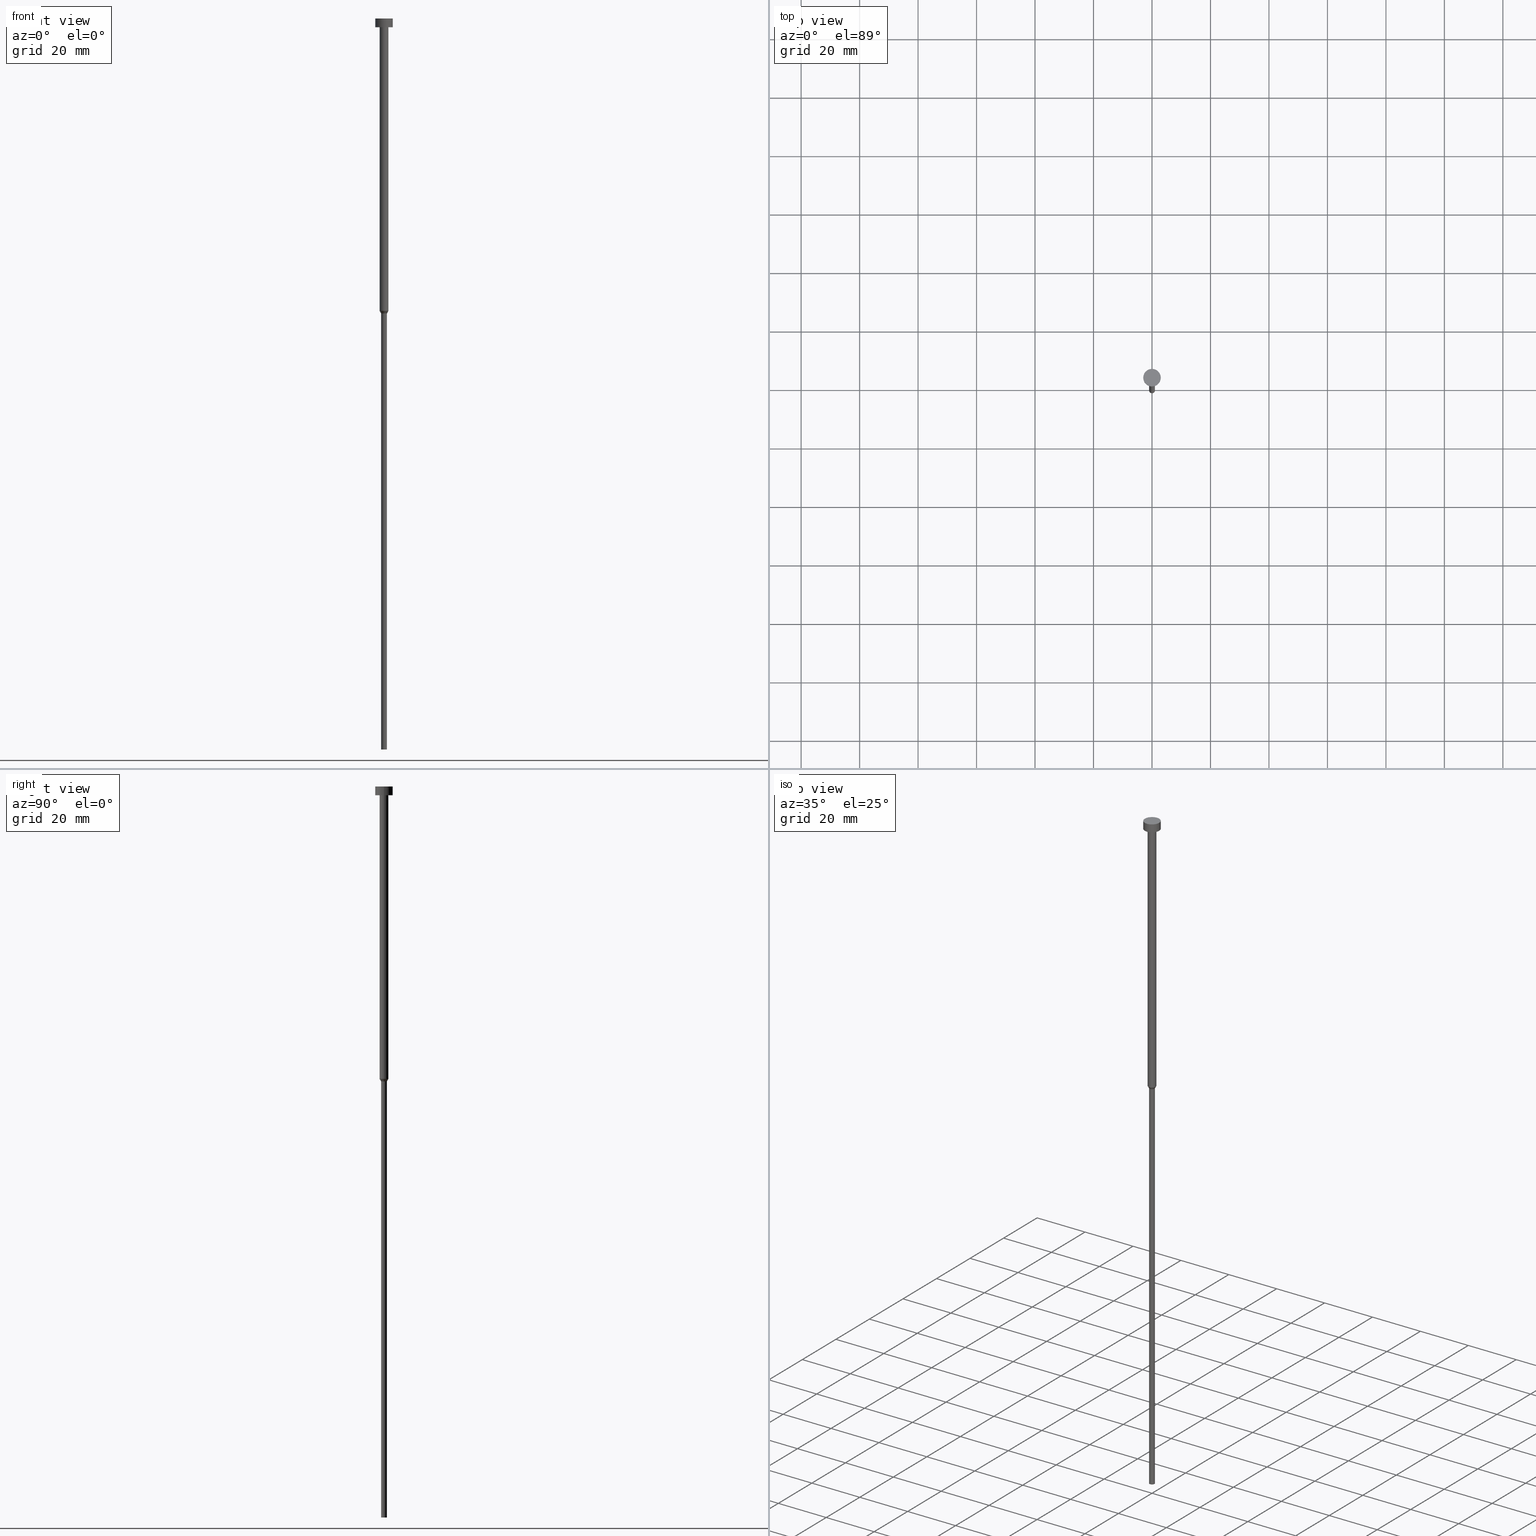
[diagram: canonical four-view strip — front | top / right | iso, engineering-drawing reading convention]
A machine part, canonical four-view strip (front | top / right | iso — engineering-drawing reading convention). The complete STEP part file that produces these views, byte-faithful:
ISO-10303-21;
HEADER;
FILE_DESCRIPTION (( 'STEP AP203' ),
    '1' );
FILE_NAME ('ff66.STEP',
    '2023-02-13T09:01:12',
    ( '' ),
    ( '' ),
    'SwSTEP 2.0',
    'SolidWorks 2019',
    '' );
FILE_SCHEMA (( 'CONFIG_CONTROL_DESIGN' ));
ENDSEC;

DATA;
#1 = EDGE_LOOP ( 'NONE', ( #247, #104, #208, #133 ) ) ;
#2 = EDGE_CURVE ( 'NONE', #71, #329, #213, .T. ) ;
#3 = DIRECTION ( 'NONE',  ( 1.000000000000000000, 0.000000000000000000, 0.000000000000000000 ) ) ;
#4 = DATE_AND_TIME ( #282, #180 ) ;
#5 = DIRECTION ( 'NONE',  ( 1.000000000000000000, 0.000000000000000000, 0.000000000000000000 ) ) ;
#6 = APPROVAL_PERSON_ORGANIZATION ( #116, #93, #175 ) ;
#7 = CARTESIAN_POINT ( 'NONE',  ( -1.000000000000000000, 1.224646799147353207E-16, 0.000000000000000000 ) ) ;
#8 = DATE_AND_TIME ( #168, #206 ) ;
#9 = ADVANCED_FACE ( 'NONE', ( #70 ), #301, .T. ) ;
#10 = CARTESIAN_POINT ( 'NONE',  ( -1.500000000000000000, 1.836970198721029934E-16, -100.0000000000000000 ) ) ;
#11 = PERSON_AND_ORGANIZATION ( #188, #77 ) ;
#12 = CARTESIAN_POINT ( 'NONE',  ( 0.000000000000000000, 0.000000000000000000, -3.000000000000000888 ) ) ;
#13 = APPROVAL_ROLE ( '' ) ;
#14 = CARTESIAN_POINT ( 'NONE',  ( -1.000000000000000000, 1.224646799147353207E-16, -100.8660254037844481 ) ) ;
#15 = ADVANCED_FACE ( 'NONE', ( #345 ), #25, .T. ) ;
#16 = AXIS2_PLACEMENT_3D ( 'NONE', #230, #76, #331 ) ;
#17 = AXIS2_PLACEMENT_3D ( 'NONE', #248, #272, #49 ) ;
#18 = EDGE_LOOP ( 'NONE', ( #262, #112 ) ) ;
#19 = CARTESIAN_POINT ( 'NONE',  ( -1.000000000000000000, 1.224646799147353207E-16, -250.0000000000000000 ) ) ;
#20 = CIRCLE ( 'NONE', #141, 1.000000000000000000 ) ;
#21 = CC_DESIGN_DATE_AND_TIME_ASSIGNMENT ( #196, #302, ( #341 ) ) ;
#22 = VERTEX_POINT ( 'NONE', #312 ) ;
#23 = CYLINDRICAL_SURFACE ( 'NONE', #118, 3.000000000000000000 ) ;
#24 = LOCAL_TIME ( 10, 1, 12.00000000000000000, #91 ) ;
#25 = CYLINDRICAL_SURFACE ( 'NONE', #47, 1.500000000000000000 ) ;
#26 = ORIENTED_EDGE ( 'NONE', *, *, #232, .F. ) ;
#27 = ORIENTED_EDGE ( 'NONE', *, *, #151, .F. ) ;
#28 = CC_DESIGN_PERSON_AND_ORGANIZATION_ASSIGNMENT ( #11, #59, ( #101 ) ) ;
#29 = CARTESIAN_POINT ( 'NONE',  ( 0.000000000000000000, 0.000000000000000000, -100.0000000000000000 ) ) ;
#30 = CARTESIAN_POINT ( 'NONE',  ( 0.000000000000000000, 0.000000000000000000, -250.0000000000000000 ) ) ;
#31 = COORDINATED_UNIVERSAL_TIME_OFFSET ( 1, 0, .AHEAD. ) ;
#32 = CARTESIAN_POINT ( 'NONE',  ( 0.000000000000000000, 0.000000000000000000, -1.836970198721029934E-16 ) ) ;
#33 = CC_DESIGN_PERSON_AND_ORGANIZATION_ASSIGNMENT ( #122, #87, ( #313 ) ) ;
#34 = APPROVAL_ROLE ( '' ) ;
#35 = CIRCLE ( 'NONE', #326, 1.000000000000000000 ) ;
#36 = VECTOR ( 'NONE', #113, 1000.000000000000000 ) ;
#37 = DIRECTION ( 'NONE',  ( -0.000000000000000000, -0.000000000000000000, 1.000000000000000000 ) ) ;
#38 = DIRECTION ( 'NONE',  ( -0.000000000000000000, -0.000000000000000000, 1.000000000000000000 ) ) ;
#39 = DIRECTION ( 'NONE',  ( -0.000000000000000000, -0.000000000000000000, 1.000000000000000000 ) ) ;
#40 = CIRCLE ( 'NONE', #235, 1.500000000000000000 ) ;
#41 = EDGE_LOOP ( 'NONE', ( #297, #241, #68, #48 ) ) ;
#42 = CC_DESIGN_PERSON_AND_ORGANIZATION_ASSIGNMENT ( #226, #89, ( #310 ) ) ;
#43 = VECTOR ( 'NONE', #244, 1000.000000000000114 ) ;
#44 = CARTESIAN_POINT ( 'NONE',  ( 0.000000000000000000, 0.000000000000000000, -100.0000000000000000 ) ) ;
#45 = EDGE_LOOP ( 'NONE', ( #135, #314, #129, #161 ) ) ;
#46 = CYLINDRICAL_SURFACE ( 'NONE', #17, 1.000000000000000000 ) ;
#47 = AXIS2_PLACEMENT_3D ( 'NONE', #148, #249, #3 ) ;
#48 = ORIENTED_EDGE ( 'NONE', *, *, #217, .F. ) ;
#49 = DIRECTION ( 'NONE',  ( 1.000000000000000000, 0.000000000000000000, 0.000000000000000000 ) ) ;
#50 = VERTEX_POINT ( 'NONE', #198 ) ;
#51 = EDGE_CURVE ( 'NONE', #291, #209, #340, .T. ) ;
#52 = ORIENTED_EDGE ( 'NONE', *, *, #51, .F. ) ;
#53 = CARTESIAN_POINT ( 'NONE',  ( 3.000000000000000000, 0.000000000000000000, 0.000000000000000000 ) ) ;
#54 = ORIENTED_EDGE ( 'NONE', *, *, #290, .T. ) ;
#55 = PLANE ( 'NONE',  #177 ) ;
#56 = CALENDAR_DATE ( 2023, 13, 2 ) ;
#57 = ADVANCED_FACE ( 'NONE', ( #142 ), #119, .T. ) ;
#58 = DIRECTION ( 'NONE',  ( 0.000000000000000000, 0.000000000000000000, -1.000000000000000000 ) ) ;
#59 = PERSON_AND_ORGANIZATION_ROLE ( 'design_supplier' ) ;
#60 = DESIGN_CONTEXT ( 'detailed design', #260, 'design' ) ;
#61 = DIRECTION ( 'NONE',  ( -0.000000000000000000, -0.000000000000000000, 1.000000000000000000 ) ) ;
#62 = CIRCLE ( 'NONE', #237, 1.000000000000000000 ) ;
#63 = DIRECTION ( 'NONE',  ( -0.000000000000000000, -0.000000000000000000, 1.000000000000000000 ) ) ;
#64 = APPROVAL_DATE_TIME ( #275, #69 ) ;
#65 = CARTESIAN_POINT ( 'NONE',  ( 0.000000000000000000, 0.000000000000000000, -100.8660254037844481 ) ) ;
#66 = VERTEX_POINT ( 'NONE', #10 ) ;
#67 = LOCAL_TIME ( 10, 1, 12.00000000000000000, #94 ) ;
#68 = ORIENTED_EDGE ( 'NONE', *, *, #285, .T. ) ;
#69 = APPROVAL ( #223, 'NEUR�EN�' ) ;
#70 = FACE_OUTER_BOUND ( 'NONE', #132, .T. ) ;
#71 = VERTEX_POINT ( 'NONE', #227 ) ;
#72 = DIRECTION ( 'NONE',  ( 1.000000000000000000, 0.000000000000000000, 0.000000000000000000 ) ) ;
#73 = AXIS2_PLACEMENT_3D ( 'NONE', #332, #38, #195 ) ;
#74 = ORIENTED_EDGE ( 'NONE', *, *, #151, .T. ) ;
#75 = EDGE_CURVE ( 'NONE', #264, #205, #194, .T. ) ;
#76 = DIRECTION ( 'NONE',  ( -0.000000000000000000, -0.000000000000000000, 1.000000000000000000 ) ) ;
#77 = ORGANIZATION ( 'NEUR�EN�', 'NEUR�EN�', '' ) ;
#78 = PRODUCT_DEFINITION_SHAPE ( 'NONE', 'NONE',  #310 ) ;
#79 = ORIENTED_EDGE ( 'NONE', *, *, #324, .T. ) ;
#80 = CARTESIAN_POINT ( 'NONE',  ( 0.000000000000000000, 0.000000000000000000, 0.000000000000000000 ) ) ;
#81 = FACE_OUTER_BOUND ( 'NONE', #45, .T. ) ;
#82 = CIRCLE ( 'NONE', #231, 1.500000000000000000 ) ;
#83 = DIRECTION ( 'NONE',  ( 1.000000000000000000, 0.000000000000000000, 0.000000000000000000 ) ) ;
#84 = EDGE_CURVE ( 'NONE', #66, #128, #123, .T. ) ;
#85 = ADVANCED_FACE ( 'NONE', ( #303 ), #225, .T. ) ;
#86 = CARTESIAN_POINT ( 'NONE',  ( -3.000000000000000000, 3.673940397442059868E-16, -3.673940397442059868E-16 ) ) ;
#87 = PERSON_AND_ORGANIZATION_ROLE ( 'design_owner' ) ;
#88 = FACE_OUTER_BOUND ( 'NONE', #215, .T. ) ;
#89 = PERSON_AND_ORGANIZATION_ROLE ( 'creator' ) ;
#90 = DIRECTION ( 'NONE',  ( -1.000000000000000000, 0.000000000000000000, -0.000000000000000000 ) ) ;
#91 = COORDINATED_UNIVERSAL_TIME_OFFSET ( 1, 0, .AHEAD. ) ;
#92 = CARTESIAN_POINT ( 'NONE',  ( -1.500000000000000000, 1.836970198721029934E-16, 0.000000000000000000 ) ) ;
#93 = APPROVAL ( #166, 'NEUR�EN�' ) ;
#94 = COORDINATED_UNIVERSAL_TIME_OFFSET ( 1, 0, .AHEAD. ) ;
#95 = DIRECTION ( 'NONE',  ( 1.000000000000000000, 0.000000000000000000, 0.000000000000000000 ) ) ;
#96 = ORIENTED_EDGE ( 'NONE', *, *, #224, .F. ) ;
#97 = EDGE_LOOP ( 'NONE', ( #325, #163 ) ) ;
#98 = CLOSED_SHELL ( 'NONE', ( #336, #57, #245, #115, #160, #289, #183, #15, #193, #9, #85 ) ) ;
#99 = CC_DESIGN_PERSON_AND_ORGANIZATION_ASSIGNMENT ( #253, #228, ( #341 ) ) ;
#100 = EDGE_CURVE ( 'NONE', #329, #102, #274, .T. ) ;
#101 = PRODUCT_DEFINITION_FORMATION_WITH_SPECIFIED_SOURCE ( 'LIBOVOLN�', '', #313, .NOT_KNOWN. ) ;
#102 = VERTEX_POINT ( 'NONE', #86 ) ;
#103 = CARTESIAN_POINT ( 'NONE',  ( 1.000000000000000000, 0.000000000000000000, 0.000000000000000000 ) ) ;
#104 = ORIENTED_EDGE ( 'NONE', *, *, #217, .T. ) ;
#105 = CARTESIAN_POINT ( 'NONE',  ( 0.000000000000000000, 0.000000000000000000, 0.000000000000000000 ) ) ;
#106 = VERTEX_POINT ( 'NONE', #220 ) ;
#107 = CARTESIAN_POINT ( 'NONE',  ( 0.000000000000000000, 0.000000000000000000, -3.673940397442059868E-16 ) ) ;
#108 = AXIS2_PLACEMENT_3D ( 'NONE', #184, #293, #158 ) ;
#109 = ORIENTED_EDGE ( 'NONE', *, *, #100, .F. ) ;
#110 = DIRECTION ( 'NONE',  ( -0.000000000000000000, -0.000000000000000000, 1.000000000000000000 ) ) ;
#111 = CC_DESIGN_APPROVAL ( #69, ( #310 ) ) ;
#112 = ORIENTED_EDGE ( 'NONE', *, *, #349, .F. ) ;
#113 = DIRECTION ( 'NONE',  ( -0.000000000000000000, -0.000000000000000000, 1.000000000000000000 ) ) ;
#114 = DIRECTION ( 'NONE',  ( -0.000000000000000000, -0.000000000000000000, 1.000000000000000000 ) ) ;
#115 = ADVANCED_FACE ( 'NONE', ( #88 ), #169, .T. ) ;
#116 = PERSON_AND_ORGANIZATION ( #188, #77 ) ;
#117 = FACE_OUTER_BOUND ( 'NONE', #1, .T. ) ;
#118 = AXIS2_PLACEMENT_3D ( 'NONE', #182, #110, #131 ) ;
#119 = CYLINDRICAL_SURFACE ( 'NONE', #199, 1.500000000000000000 ) ;
#120 = SHAPE_DEFINITION_REPRESENTATION ( #78, #239 ) ;
#121 = DIRECTION ( 'NONE',  ( 1.000000000000000000, 0.000000000000000000, 0.000000000000000000 ) ) ;
#122 = PERSON_AND_ORGANIZATION ( #188, #77 ) ;
#123 = LINE ( 'NONE', #92, #287 ) ;
#124 = COORDINATED_UNIVERSAL_TIME_OFFSET ( 1, 0, .AHEAD. ) ;
#125 =( GEOMETRIC_REPRESENTATION_CONTEXT ( 3 ) GLOBAL_UNCERTAINTY_ASSIGNED_CONTEXT ( ( #335 ) ) GLOBAL_UNIT_ASSIGNED_CONTEXT ( ( #298, #190, #212 ) ) REPRESENTATION_CONTEXT ( 'NONE', 'WORKASPACE' ) );
#126 = DIRECTION ( 'NONE',  ( 1.000000000000000000, 0.000000000000000000, 0.000000000000000000 ) ) ;
#127 = AXIS2_PLACEMENT_3D ( 'NONE', #150, #176, #95 ) ;
#128 = VERTEX_POINT ( 'NONE', #305 ) ;
#129 = ORIENTED_EDGE ( 'NONE', *, *, #138, .F. ) ;
#130 = CIRCLE ( 'NONE', #144, 3.000000000000000000 ) ;
#131 = DIRECTION ( 'NONE',  ( 1.000000000000000000, 0.000000000000000000, 0.000000000000000000 ) ) ;
#132 = EDGE_LOOP ( 'NONE', ( #109, #186, #54, #243 ) ) ;
#133 = ORIENTED_EDGE ( 'NONE', *, *, #261, .F. ) ;
#134 = DIRECTION ( 'NONE',  ( -0.000000000000000000, -0.000000000000000000, 1.000000000000000000 ) ) ;
#135 = ORIENTED_EDGE ( 'NONE', *, *, #2, .T. ) ;
#136 = FACE_OUTER_BOUND ( 'NONE', #316, .T. ) ;
#137 = VECTOR ( 'NONE', #159, 1000.000000000000000 ) ;
#138 = EDGE_CURVE ( 'NONE', #50, #102, #354, .T. ) ;
#139 = DIRECTION ( 'NONE',  ( -0.000000000000000000, -0.000000000000000000, 1.000000000000000000 ) ) ;
#140 = CARTESIAN_POINT ( 'NONE',  ( 0.000000000000000000, 0.000000000000000000, -250.0000000000000000 ) ) ;
#141 = AXIS2_PLACEMENT_3D ( 'NONE', #140, #250, #307 ) ;
#142 = FACE_OUTER_BOUND ( 'NONE', #238, .T. ) ;
#143 = PERSON_AND_ORGANIZATION ( #188, #77 ) ;
#144 = AXIS2_PLACEMENT_3D ( 'NONE', #107, #263, #348 ) ;
#145 = DIRECTION ( 'NONE',  ( -0.000000000000000000, -0.000000000000000000, 1.000000000000000000 ) ) ;
#146 = CALENDAR_DATE ( 2023, 13, 2 ) ;
#147 = MANIFOLD_SOLID_BREP ( 'Rotovat1', #98 ) ;
#148 = CARTESIAN_POINT ( 'NONE',  ( 0.000000000000000000, 0.000000000000000000, 0.000000000000000000 ) ) ;
#149 = PERSON_AND_ORGANIZATION_ROLE ( 'creator' ) ;
#150 = CARTESIAN_POINT ( 'NONE',  ( 0.000000000000000000, 0.000000000000000000, -100.8660254037844481 ) ) ;
#151 = EDGE_CURVE ( 'NONE', #128, #209, #40, .T. ) ;
#152 = AXIS2_PLACEMENT_3D ( 'NONE', #80, #234, #267 ) ;
#153 = PRODUCT_RELATED_PRODUCT_CATEGORY ( 'detail', '', ( #313 ) ) ;
#154 = CARTESIAN_POINT ( 'NONE',  ( 1.500000000000000000, 0.000000000000000000, -100.0000000000000000 ) ) ;
#155 = ORIENTED_EDGE ( 'NONE', *, *, #157, .T. ) ;
#156 = AXIS2_PLACEMENT_3D ( 'NONE', #32, #256, #337 ) ;
#157 = EDGE_CURVE ( 'NONE', #291, #66, #82, .T. ) ;
#158 = DIRECTION ( 'NONE',  ( 1.000000000000000000, 0.000000000000000000, 0.000000000000000000 ) ) ;
#159 = DIRECTION ( 'NONE',  ( -0.000000000000000000, -0.000000000000000000, 1.000000000000000000 ) ) ;
#160 = ADVANCED_FACE ( 'NONE', ( #309 ), #55, .T. ) ;
#161 = ORIENTED_EDGE ( 'NONE', *, *, #290, .F. ) ;
#162 = APPLICATION_PROTOCOL_DEFINITION ( 'international standard', 'config_control_design', 1994, #240 ) ;
#163 = ORIENTED_EDGE ( 'NONE', *, *, #350, .T. ) ;
#164 = CARTESIAN_POINT ( 'NONE',  ( 1.500000000000000000, 0.000000000000000000, -100.0000000000000000 ) ) ;
#165 = CARTESIAN_POINT ( 'NONE',  ( 1.500000000000000000, 0.000000000000000000, 0.000000000000000000 ) ) ;
#166 = APPROVAL_STATUS ( 'not_yet_approved' ) ;
#167 = CARTESIAN_POINT ( 'NONE',  ( 0.000000000000000000, 0.000000000000000000, -3.673940397442059868E-16 ) ) ;
#168 = CALENDAR_DATE ( 2023, 13, 2 ) ;
#169 = CYLINDRICAL_SURFACE ( 'NONE', #73, 1.000000000000000000 ) ;
#170 = PERSON_AND_ORGANIZATION ( #188, #77 ) ;
#171 = CIRCLE ( 'NONE', #16, 3.000000000000000000 ) ;
#172 = DIRECTION ( 'NONE',  ( 1.000000000000000000, 0.000000000000000000, 0.000000000000000000 ) ) ;
#173 = CONICAL_SURFACE ( 'NONE', #214, 1.500000000000000000, 0.5235987755982968173 ) ;
#174 = CARTESIAN_POINT ( 'NONE',  ( 0.000000000000000000, 0.000000000000000000, 0.000000000000000000 ) ) ;
#175 = APPROVAL_ROLE ( '' ) ;
#176 = DIRECTION ( 'NONE',  ( -0.000000000000000000, -0.000000000000000000, 1.000000000000000000 ) ) ;
#177 = AXIS2_PLACEMENT_3D ( 'NONE', #30, #58, #334 ) ;
#178 = LOCAL_TIME ( 10, 1, 12.00000000000000000, #221 ) ;
#179 = EDGE_CURVE ( 'NONE', #22, #264, #20, .T. ) ;
#180 = LOCAL_TIME ( 10, 1, 12.00000000000000000, #31 ) ;
#181 = ORIENTED_EDGE ( 'NONE', *, *, #285, .F. ) ;
#182 = CARTESIAN_POINT ( 'NONE',  ( 0.000000000000000000, 0.000000000000000000, 0.000000000000000000 ) ) ;
#183 = ADVANCED_FACE ( 'NONE', ( #117 ), #279, .T. ) ;
#184 = CARTESIAN_POINT ( 'NONE',  ( 0.000000000000000000, 0.000000000000000000, -3.000000000000000888 ) ) ;
#185 = AXIS2_PLACEMENT_3D ( 'NONE', #254, #338, #90 ) ;
#186 = ORIENTED_EDGE ( 'NONE', *, *, #224, .T. ) ;
#187 = DIRECTION ( 'NONE',  ( 1.000000000000000000, 0.000000000000000000, 0.000000000000000000 ) ) ;
#188 = PERSON ( 'NEUR�EN�', 'NEUR�EN�', 'NEUR�EN�', ('NEUR�EN�'), ('NEUR�EN�'), ('NEUR�EN�') ) ;
#189 = EDGE_LOOP ( 'NONE', ( #211, #96 ) ) ;
#190 =( NAMED_UNIT ( * ) PLANE_ANGLE_UNIT ( ) SI_UNIT ( $, .RADIAN. ) );
#191 = ORIENTED_EDGE ( 'NONE', *, *, #324, .F. ) ;
#192 = DIRECTION ( 'NONE',  ( -0.000000000000000000, -0.000000000000000000, 1.000000000000000000 ) ) ;
#193 = ADVANCED_FACE ( 'NONE', ( #252, #280 ), #201, .T. ) ;
#194 = LINE ( 'NONE', #7, #333 ) ;
#195 = DIRECTION ( 'NONE',  ( 1.000000000000000000, 0.000000000000000000, 0.000000000000000000 ) ) ;
#196 = DATE_AND_TIME ( #304, #24 ) ;
#197 = EDGE_CURVE ( 'NONE', #106, #205, #265, .T. ) ;
#198 = CARTESIAN_POINT ( 'NONE',  ( 3.000000000000000000, 0.000000000000000000, -3.673940397442059868E-16 ) ) ;
#199 = AXIS2_PLACEMENT_3D ( 'NONE', #174, #139, #83 ) ;
#200 = DIRECTION ( 'NONE',  ( -0.000000000000000000, -0.000000000000000000, 1.000000000000000000 ) ) ;
#201 = PLANE ( 'NONE',  #185 ) ;
#202 = DIRECTION ( 'NONE',  ( -0.4999999999999981681, 6.123233995736742617E-17, 0.8660254037844395958 ) ) ;
#203 = ORIENTED_EDGE ( 'NONE', *, *, #261, .T. ) ;
#204 = VECTOR ( 'NONE', #202, 1000.000000000000114 ) ;
#205 = VERTEX_POINT ( 'NONE', #14 ) ;
#206 = LOCAL_TIME ( 10, 1, 12.00000000000000000, #124 ) ;
#207 = CC_DESIGN_SECURITY_CLASSIFICATION ( #341, ( #101 ) ) ;
#208 = ORIENTED_EDGE ( 'NONE', *, *, #232, .T. ) ;
#209 = VERTEX_POINT ( 'NONE', #286 ) ;
#210 = CARTESIAN_POINT ( 'NONE',  ( 0.000000000000000000, 0.000000000000000000, -100.0000000000000000 ) ) ;
#211 = ORIENTED_EDGE ( 'NONE', *, *, #2, .F. ) ;
#212 =( NAMED_UNIT ( * ) SI_UNIT ( $, .STERADIAN. ) SOLID_ANGLE_UNIT ( ) );
#213 = CIRCLE ( 'NONE', #108, 3.000000000000000000 ) ;
#214 = AXIS2_PLACEMENT_3D ( 'NONE', #44, #321, #236 ) ;
#215 = EDGE_LOOP ( 'NONE', ( #218, #353, #351, #181 ) ) ;
#216 = EDGE_CURVE ( 'NONE', #205, #66, #342, .T. ) ;
#217 = EDGE_CURVE ( 'NONE', #205, #106, #35, .T. ) ;
#218 = ORIENTED_EDGE ( 'NONE', *, *, #179, .T. ) ;
#219 = LINE ( 'NONE', #103, #137 ) ;
#220 = CARTESIAN_POINT ( 'NONE',  ( 1.000000000000000000, 0.000000000000000000, -100.8660254037844481 ) ) ;
#221 = COORDINATED_UNIVERSAL_TIME_OFFSET ( 1, 0, .AHEAD. ) ;
#222 = DIRECTION ( 'NONE',  ( -0.000000000000000000, -0.000000000000000000, 1.000000000000000000 ) ) ;
#223 = APPROVAL_STATUS ( 'not_yet_approved' ) ;
#224 = EDGE_CURVE ( 'NONE', #329, #71, #171, .T. ) ;
#225 = PLANE ( 'NONE',  #156 ) ;
#226 = PERSON_AND_ORGANIZATION ( #188, #77 ) ;
#227 = CARTESIAN_POINT ( 'NONE',  ( 3.000000000000000000, 0.000000000000000000, -3.000000000000000888 ) ) ;
#228 = PERSON_AND_ORGANIZATION_ROLE ( 'classification_officer' ) ;
#229 = DIRECTION ( 'NONE',  ( -0.000000000000000000, -0.000000000000000000, 1.000000000000000000 ) ) ;
#230 = CARTESIAN_POINT ( 'NONE',  ( 0.000000000000000000, 0.000000000000000000, -3.000000000000000888 ) ) ;
#231 = AXIS2_PLACEMENT_3D ( 'NONE', #29, #145, #5 ) ;
#232 = EDGE_CURVE ( 'NONE', #106, #291, #266, .T. ) ;
#233 = CC_DESIGN_PERSON_AND_ORGANIZATION_ASSIGNMENT ( #143, #149, ( #101 ) ) ;
#234 = DIRECTION ( 'NONE',  ( -0.000000000000000000, -0.000000000000000000, 1.000000000000000000 ) ) ;
#235 = AXIS2_PLACEMENT_3D ( 'NONE', #12, #63, #121 ) ;
#236 = DIRECTION ( 'NONE',  ( 1.000000000000000000, 0.000000000000000000, 0.000000000000000000 ) ) ;
#237 = AXIS2_PLACEMENT_3D ( 'NONE', #328, #192, #187 ) ;
#238 = EDGE_LOOP ( 'NONE', ( #155, #318, #191, #52 ) ) ;
#239 = ADVANCED_BREP_SHAPE_REPRESENTATION ( 'ff66', ( #147, #246 ), #125 ) ;
#240 = APPLICATION_CONTEXT ( 'configuration controlled 3d designs of mechanical parts and assemblies' ) ;
#241 = ORIENTED_EDGE ( 'NONE', *, *, #349, .T. ) ;
#242 = DIRECTION ( 'NONE',  ( 1.000000000000000000, 0.000000000000000000, 0.000000000000000000 ) ) ;
#243 = ORIENTED_EDGE ( 'NONE', *, *, #350, .F. ) ;
#244 = DIRECTION ( 'NONE',  ( 0.4999999999999981681, 0.000000000000000000, 0.8660254037844395958 ) ) ;
#245 = ADVANCED_FACE ( 'NONE', ( #136 ), #173, .T. ) ;
#246 = AXIS2_PLACEMENT_3D ( 'NONE', #105, #323, #72 ) ;
#247 = ORIENTED_EDGE ( 'NONE', *, *, #216, .F. ) ;
#248 = CARTESIAN_POINT ( 'NONE',  ( 0.000000000000000000, 0.000000000000000000, 0.000000000000000000 ) ) ;
#249 = DIRECTION ( 'NONE',  ( -0.000000000000000000, -0.000000000000000000, 1.000000000000000000 ) ) ;
#250 = DIRECTION ( 'NONE',  ( -0.000000000000000000, -0.000000000000000000, 1.000000000000000000 ) ) ;
#251 = DATE_TIME_ROLE ( 'creation_date' ) ;
#252 = FACE_BOUND ( 'NONE', #347, .T. ) ;
#253 = PERSON_AND_ORGANIZATION ( #188, #77 ) ;
#254 = CARTESIAN_POINT ( 'NONE',  ( 0.000000000000000000, -3.000000000000000000, -3.000000000000000888 ) ) ;
#255 = DATE_AND_TIME ( #146, #178 ) ;
#256 = DIRECTION ( 'NONE',  ( 0.000000000000000000, -0.000000000000000000, 1.000000000000000000 ) ) ;
#257 = APPROVAL_DATE_TIME ( #8, #296 ) ;
#258 = CARTESIAN_POINT ( 'NONE',  ( -1.500000000000000000, 1.836970198721029934E-16, -100.0000000000000000 ) ) ;
#259 = CIRCLE ( 'NONE', #288, 1.500000000000000000 ) ;
#260 = APPLICATION_CONTEXT ( 'configuration controlled 3d designs of mechanical parts and assemblies' ) ;
#261 = EDGE_CURVE ( 'NONE', #66, #291, #344, .T. ) ;
#262 = ORIENTED_EDGE ( 'NONE', *, *, #179, .F. ) ;
#263 = DIRECTION ( 'NONE',  ( -0.000000000000000000, -0.000000000000000000, 1.000000000000000000 ) ) ;
#264 = VERTEX_POINT ( 'NONE', #19 ) ;
#265 = CIRCLE ( 'NONE', #127, 1.000000000000000000 ) ;
#266 = LINE ( 'NONE', #164, #43 ) ;
#267 = DIRECTION ( 'NONE',  ( 1.000000000000000000, 0.000000000000000000, 0.000000000000000000 ) ) ;
#268 = CARTESIAN_POINT ( 'NONE',  ( 0.000000000000000000, 0.000000000000000000, -3.000000000000000888 ) ) ;
#269 = ORIENTED_EDGE ( 'NONE', *, *, #157, .F. ) ;
#270 = FACE_OUTER_BOUND ( 'NONE', #41, .T. ) ;
#271 = ORIENTED_EDGE ( 'NONE', *, *, #197, .T. ) ;
#272 = DIRECTION ( 'NONE',  ( -0.000000000000000000, -0.000000000000000000, 1.000000000000000000 ) ) ;
#273 = AXIS2_PLACEMENT_3D ( 'NONE', #210, #300, #346 ) ;
#274 = LINE ( 'NONE', #276, #294 ) ;
#275 = DATE_AND_TIME ( #56, #67 ) ;
#276 = CARTESIAN_POINT ( 'NONE',  ( -3.000000000000000000, 3.673940397442059868E-16, 0.000000000000000000 ) ) ;
#277 = CARTESIAN_POINT ( 'NONE',  ( 0.000000000000000000, 0.000000000000000000, -100.0000000000000000 ) ) ;
#278 = APPROVAL_STATUS ( 'not_yet_approved' ) ;
#279 = CONICAL_SURFACE ( 'NONE', #315, 1.500000000000000000, 0.5235987755982968173 ) ;
#280 = FACE_OUTER_BOUND ( 'NONE', #189, .T. ) ;
#281 = APPROVAL_PERSON_ORGANIZATION ( #170, #296, #34 ) ;
#282 = CALENDAR_DATE ( 2023, 13, 2 ) ;
#283 = DIRECTION ( 'NONE',  ( 1.000000000000000000, 0.000000000000000000, 0.000000000000000000 ) ) ;
#284 = SECURITY_CLASSIFICATION_LEVEL ( 'unclassified' ) ;
#285 = EDGE_CURVE ( 'NONE', #22, #106, #219, .T. ) ;
#286 = CARTESIAN_POINT ( 'NONE',  ( 1.500000000000000000, 0.000000000000000000, -3.000000000000000888 ) ) ;
#287 = VECTOR ( 'NONE', #222, 1000.000000000000000 ) ;
#288 = AXIS2_PLACEMENT_3D ( 'NONE', #268, #134, #242 ) ;
#289 = ADVANCED_FACE ( 'NONE', ( #270 ), #46, .T. ) ;
#290 = EDGE_CURVE ( 'NONE', #71, #50, #355, .T. ) ;
#291 = VERTEX_POINT ( 'NONE', #154 ) ;
#292 = MECHANICAL_CONTEXT ( 'NONE', #240, 'mechanical' ) ;
#293 = DIRECTION ( 'NONE',  ( -0.000000000000000000, -0.000000000000000000, 1.000000000000000000 ) ) ;
#294 = VECTOR ( 'NONE', #37, 1000.000000000000000 ) ;
#295 = CC_DESIGN_APPROVAL ( #296, ( #341 ) ) ;
#296 = APPROVAL ( #278, 'NEUR�EN�' ) ;
#297 = ORIENTED_EDGE ( 'NONE', *, *, #75, .F. ) ;
#298 =( LENGTH_UNIT ( ) NAMED_UNIT ( * ) SI_UNIT ( .MILLI., .METRE. ) );
#299 = ORIENTED_EDGE ( 'NONE', *, *, #216, .T. ) ;
#300 = DIRECTION ( 'NONE',  ( -0.000000000000000000, -0.000000000000000000, 1.000000000000000000 ) ) ;
#301 = CYLINDRICAL_SURFACE ( 'NONE', #152, 3.000000000000000000 ) ;
#302 = DATE_TIME_ROLE ( 'classification_date' ) ;
#303 = FACE_OUTER_BOUND ( 'NONE', #97, .T. ) ;
#304 = CALENDAR_DATE ( 2023, 13, 2 ) ;
#305 = CARTESIAN_POINT ( 'NONE',  ( -1.500000000000000000, 1.836970198721029934E-16, -3.000000000000000888 ) ) ;
#306 = APPROVAL_DATE_TIME ( #4, #93 ) ;
#307 = DIRECTION ( 'NONE',  ( 1.000000000000000000, 0.000000000000000000, 0.000000000000000000 ) ) ;
#308 = AXIS2_PLACEMENT_3D ( 'NONE', #167, #229, #283 ) ;
#309 = FACE_OUTER_BOUND ( 'NONE', #18, .T. ) ;
#310 = PRODUCT_DEFINITION ( 'NEZN�M�', '', #101, #60 ) ;
#311 = PERSON_AND_ORGANIZATION ( #188, #77 ) ;
#312 = CARTESIAN_POINT ( 'NONE',  ( 1.000000000000000000, 0.000000000000000000, -250.0000000000000000 ) ) ;
#313 = PRODUCT ( 'ff66', 'ff66', '', ( #292 ) ) ;
#314 = ORIENTED_EDGE ( 'NONE', *, *, #100, .T. ) ;
#315 = AXIS2_PLACEMENT_3D ( 'NONE', #277, #61, #172 ) ;
#316 = EDGE_LOOP ( 'NONE', ( #271, #299, #269, #26 ) ) ;
#317 = CC_DESIGN_APPROVAL ( #93, ( #101 ) ) ;
#318 = ORIENTED_EDGE ( 'NONE', *, *, #84, .T. ) ;
#319 = APPROVAL_PERSON_ORGANIZATION ( #311, #69, #13 ) ;
#320 = ORIENTED_EDGE ( 'NONE', *, *, #84, .F. ) ;
#321 = DIRECTION ( 'NONE',  ( -0.000000000000000000, -0.000000000000000000, 1.000000000000000000 ) ) ;
#322 = ORIENTED_EDGE ( 'NONE', *, *, #51, .T. ) ;
#323 = DIRECTION ( 'NONE',  ( 0.000000000000000000, 0.000000000000000000, 1.000000000000000000 ) ) ;
#324 = EDGE_CURVE ( 'NONE', #209, #128, #259, .T. ) ;
#325 = ORIENTED_EDGE ( 'NONE', *, *, #138, .T. ) ;
#326 = AXIS2_PLACEMENT_3D ( 'NONE', #65, #39, #126 ) ;
#327 = EDGE_LOOP ( 'NONE', ( #320, #203, #322, #27 ) ) ;
#328 = CARTESIAN_POINT ( 'NONE',  ( 0.000000000000000000, 0.000000000000000000, -250.0000000000000000 ) ) ;
#329 = VERTEX_POINT ( 'NONE', #352 ) ;
#330 = CC_DESIGN_DATE_AND_TIME_ASSIGNMENT ( #255, #251, ( #310 ) ) ;
#331 = DIRECTION ( 'NONE',  ( 1.000000000000000000, 0.000000000000000000, 0.000000000000000000 ) ) ;
#332 = CARTESIAN_POINT ( 'NONE',  ( 0.000000000000000000, 0.000000000000000000, 0.000000000000000000 ) ) ;
#333 = VECTOR ( 'NONE', #114, 1000.000000000000000 ) ;
#334 = DIRECTION ( 'NONE',  ( -1.000000000000000000, 0.000000000000000000, -0.000000000000000000 ) ) ;
#335 = UNCERTAINTY_MEASURE_WITH_UNIT (LENGTH_MEASURE( 1.000000000000000082E-05 ), #298, 'distance_accuracy_value', 'NONE');
#336 = ADVANCED_FACE ( 'NONE', ( #81 ), #23, .T. ) ;
#337 = DIRECTION ( 'NONE',  ( 1.000000000000000000, 0.000000000000000000, 0.000000000000000000 ) ) ;
#338 = DIRECTION ( 'NONE',  ( 0.000000000000000000, 0.000000000000000000, -1.000000000000000000 ) ) ;
#339 = APPLICATION_PROTOCOL_DEFINITION ( 'international standard', 'config_control_design', 1994, #260 ) ;
#340 = LINE ( 'NONE', #165, #343 ) ;
#341 = SECURITY_CLASSIFICATION ( '', '', #284 ) ;
#342 = LINE ( 'NONE', #258, #204 ) ;
#343 = VECTOR ( 'NONE', #200, 1000.000000000000000 ) ;
#344 = CIRCLE ( 'NONE', #273, 1.500000000000000000 ) ;
#345 = FACE_OUTER_BOUND ( 'NONE', #327, .T. ) ;
#346 = DIRECTION ( 'NONE',  ( 1.000000000000000000, 0.000000000000000000, 0.000000000000000000 ) ) ;
#347 = EDGE_LOOP ( 'NONE', ( #79, #74 ) ) ;
#348 = DIRECTION ( 'NONE',  ( 1.000000000000000000, 0.000000000000000000, 0.000000000000000000 ) ) ;
#349 = EDGE_CURVE ( 'NONE', #264, #22, #62, .T. ) ;
#350 = EDGE_CURVE ( 'NONE', #102, #50, #130, .T. ) ;
#351 = ORIENTED_EDGE ( 'NONE', *, *, #197, .F. ) ;
#352 = CARTESIAN_POINT ( 'NONE',  ( -3.000000000000000000, 3.673940397442059868E-16, -3.000000000000000888 ) ) ;
#353 = ORIENTED_EDGE ( 'NONE', *, *, #75, .T. ) ;
#354 = CIRCLE ( 'NONE', #308, 3.000000000000000000 ) ;
#355 = LINE ( 'NONE', #53, #36 ) ;
ENDSEC;
END-ISO-10303-21;
